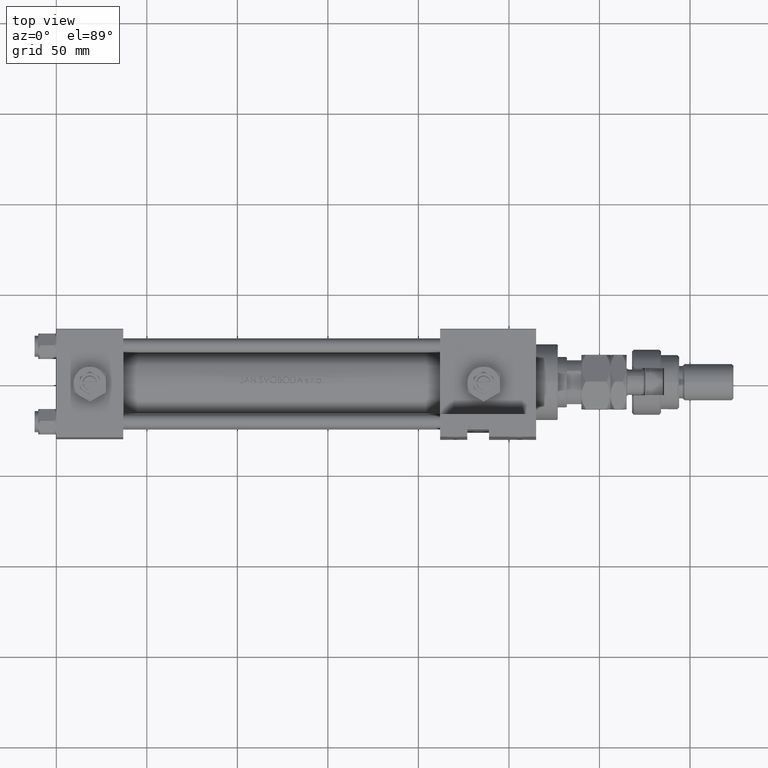
[diagram: clean part render]
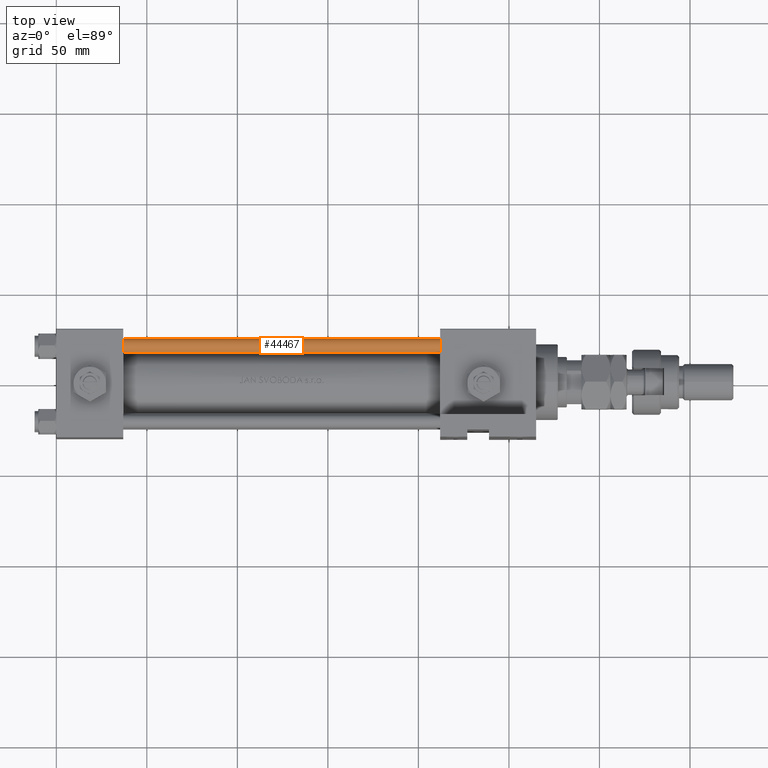
[diagram: same view with one face highlighted and labeled with its STEP entity id]
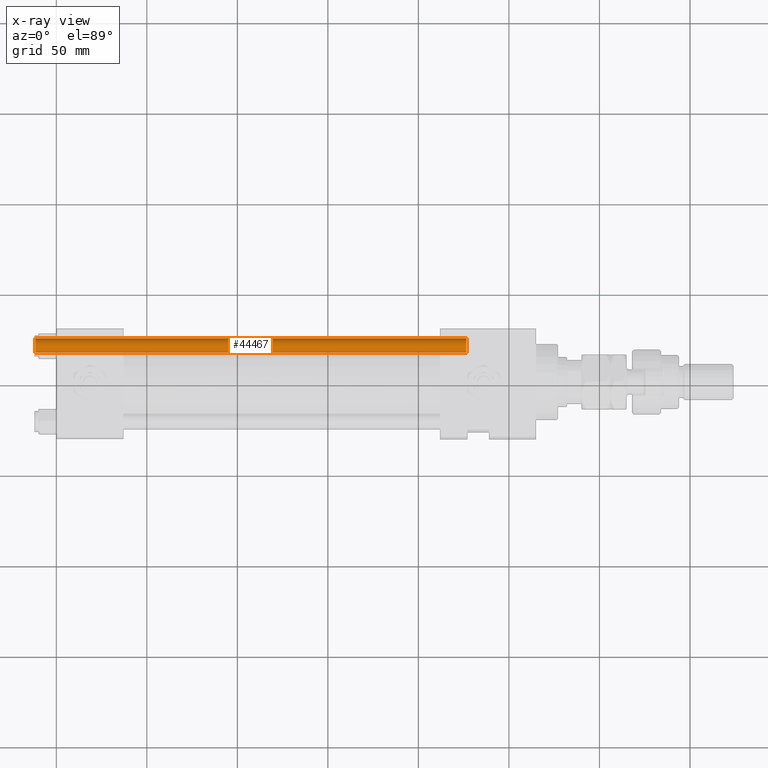
[diagram: x-ray of the same camera — body ghosted, the highlighted face saturated]
A machine part, top view. The second image highlights one B-rep face of the part: STEP entity #44467.
The next image is the same camera in x-ray: the body ghosted, the highlighted face saturated — about 0% of this face is hidden behind the body in this view.
In plain terms, the highlighted cylindrical surface (edge-blend (fillet) strip) has radius 4 mm, axis along (1, -0, 0).
Its self-contained STEP definition (entity closure, byte-faithful):
#819 = VERTEX_POINT ( 'NONE', #23738 ) ;
#1197 = VERTEX_POINT ( 'NONE', #22528 ) ;
#3917 = ORIENTED_EDGE ( 'NONE', *, *, #34917, .T. ) ;
#4260 = EDGE_CURVE ( 'NONE', #29365, #819, #41969, .T. ) ;
#4776 = CARTESIAN_POINT ( 'NONE',  ( 0.000000000000000000, 0.000000000000000000, 239.0000000000000000 ) ) ;
#6396 = AXIS2_PLACEMENT_3D ( 'NONE', #45658, #20192, #25077 ) ;
#6797 = CARTESIAN_POINT ( 'NONE',  ( 4.000000000000000000, 4.898587196589411843E-16, 239.0000000000000000 ) ) ;
#7599 = LINE ( 'NONE', #6797, #41631 ) ;
#7752 = CARTESIAN_POINT ( 'NONE',  ( 4.000000000000000000, 4.898587196589411843E-16, 238.5000000000001421 ) ) ;
#13519 = DIRECTION ( 'NONE',  ( -0.000000000000000000, -0.000000000000000000, -1.000000000000000000 ) ) ;
#14240 = EDGE_CURVE ( 'NONE', #819, #1197, #40984, .T. ) ;
#14948 = CARTESIAN_POINT ( 'NONE',  ( -4.000000000000000000, 0.000000000000000000, 238.5000000000001421 ) ) ;
#15316 = ORIENTED_EDGE ( 'NONE', *, *, #28493, .F. ) ;
#16848 = ORIENTED_EDGE ( 'NONE', *, *, #14240, .T. ) ;
#20167 = ORIENTED_EDGE ( 'NONE', *, *, #4260, .T. ) ;
#20192 = DIRECTION ( 'NONE',  ( -0.000000000000000000, -0.000000000000000000, 1.000000000000000000 ) ) ;
#20780 = CYLINDRICAL_SURFACE ( 'NONE', #34283, 4.000000000000000000 ) ;
#21381 = CARTESIAN_POINT ( 'NONE',  ( -4.000000000000000000, 0.000000000000000000, 239.0000000000000000 ) ) ;
#22331 = EDGE_LOOP ( 'NONE', ( #15316, #3917, #20167, #16848 ) ) ;
#22528 = CARTESIAN_POINT ( 'NONE',  ( 4.000000000000000000, 4.898587196589411843E-16, 0.5000000000001392220 ) ) ;
#22635 = DIRECTION ( 'NONE',  ( 0.000000000000000000, 0.000000000000000000, -1.000000000000000000 ) ) ;
#23738 = CARTESIAN_POINT ( 'NONE',  ( -4.000000000000000000, 0.000000000000000000, 0.5000000000001392220 ) ) ;
#25077 = DIRECTION ( 'NONE',  ( 1.000000000000000000, 0.000000000000000000, 0.000000000000000000 ) ) ;
#25810 = CIRCLE ( 'NONE', #36184, 4.000000000000000000 ) ;
#27244 = CARTESIAN_POINT ( 'NONE',  ( 0.000000000000000000, 0.000000000000000000, 238.5000000000001421 ) ) ;
#28493 = EDGE_CURVE ( 'NONE', #45617, #1197, #7599, .T. ) ;
#29171 = DIRECTION ( 'NONE',  ( -0.000000000000000000, -0.000000000000000000, -1.000000000000000000 ) ) ;
#29365 = VERTEX_POINT ( 'NONE', #14948 ) ;
#34283 = AXIS2_PLACEMENT_3D ( 'NONE', #4776, #29171, #45711 ) ;
#34917 = EDGE_CURVE ( 'NONE', #45617, #29365, #25810, .T. ) ;
#36184 = AXIS2_PLACEMENT_3D ( 'NONE', #27244, #22635, #47570 ) ;
#37888 = VECTOR ( 'NONE', #13519, 1000.000000000000000 ) ;
#40984 = CIRCLE ( 'NONE', #6396, 4.000000000000000000 ) ;
#41631 = VECTOR ( 'NONE', #49339, 1000.000000000000000 ) ;
#41969 = LINE ( 'NONE', #21381, #37888 ) ;
#44467 = ADVANCED_FACE ( 'NONE', ( #49776 ), #20780, .T. ) ;
#45617 = VERTEX_POINT ( 'NONE', #7752 ) ;
#45658 = CARTESIAN_POINT ( 'NONE',  ( 0.000000000000000000, 0.000000000000000000, 0.5000000000001392220 ) ) ;
#45711 = DIRECTION ( 'NONE',  ( -1.000000000000000000, 0.000000000000000000, 0.000000000000000000 ) ) ;
#47570 = DIRECTION ( 'NONE',  ( 1.000000000000000000, 0.000000000000000000, 0.000000000000000000 ) ) ;
#49339 = DIRECTION ( 'NONE',  ( -0.000000000000000000, -0.000000000000000000, -1.000000000000000000 ) ) ;
#49776 = FACE_OUTER_BOUND ( 'NONE', #22331, .T. ) ;